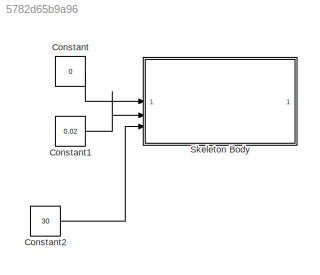
MODEL slx_5782d65b9a96
KIND model
CONFIG AbsTol = 1e-3
CONFIG EnableMultiTasking = off
CONFIG FixedStep = 0.01
CONFIG MaxStep = auto
CONFIG MinStep = auto
CONFIG RelTol = 1e-3
CONFIG SampleTimeConstraint = Unconstrained
CONFIG SolverName = VariableStepAuto
CONFIG StartTime = 0.0
CONFIG StopTime = 30
BLOCK [Constant] Constant
  Value = 0
BLOCK [Constant] Constant1
  Value = 0.02
BLOCK [Constant] Constant2
  Value = 30
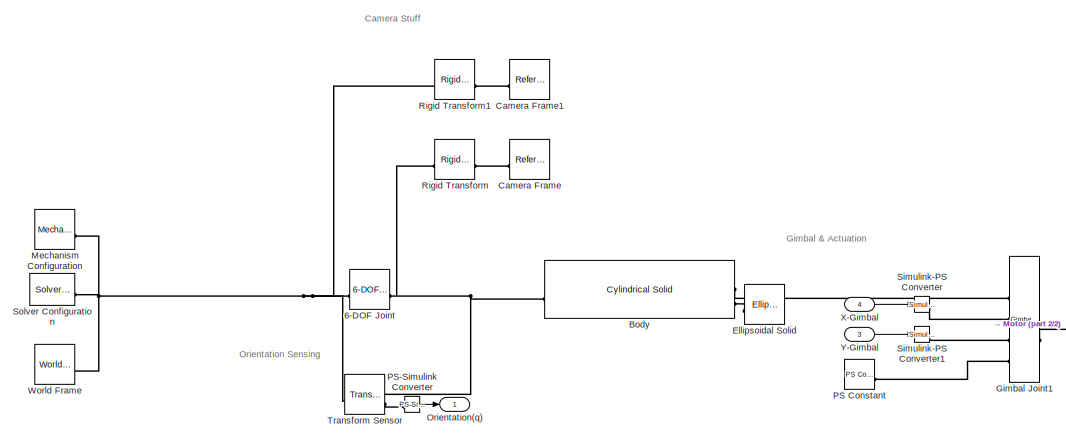
[diagram: Skeleton Body - part 1/2, left side, full height]
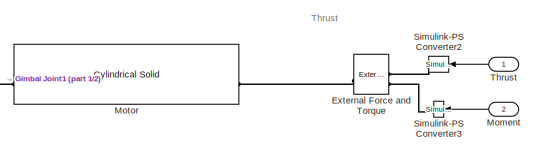
[diagram: Skeleton Body - part 2/2, bottom right region]
BLOCK [SubSystem] Skeleton Body
  NameLocation = top
BLOCK [Reference] Skeleton Body/6-DOF Joint  REF=sm_lib/Joints/6-DOF Joint
  SourceBlock = sm_lib/Joints/6-DOF Joint
  SourceType = 6-DOF Joint
BLOCK [Reference] Skeleton Body/Body  REF=sm_lib/Body Elements/Cylindrical Solid
  NameLocation = top
  SourceBlock = sm_lib/Body Elements/Cylindrical Solid
  SourceType = Cylindrical Solid
BLOCK [Reference] Skeleton Body/Camera Frame  REF=sm_lib/Frames and
Transforms/Reference
Frame
  NameLocation = top
  SourceBlock = sm_lib/Frames and\nTransforms/Reference\nFrame
  SourceType = Reference\nFrame
BLOCK [Reference] Skeleton Body/Camera Frame1  REF=sm_lib/Frames and
Transforms/Reference
Frame
  NameLocation = top
  SourceBlock = sm_lib/Frames and\nTransforms/Reference\nFrame
  SourceType = Reference\nFrame
BLOCK [Reference] Skeleton Body/Ellipsoidal Solid  REF=sm_lib/Body Elements/Ellipsoidal Solid
  NameLocation = top
  SourceBlock = sm_lib/Body Elements/Ellipsoidal Solid
  SourceType = Ellipsoidal Solid
BLOCK [Reference] Skeleton Body/External Force and Torque  REF=sm_lib/Forces and
Torques/External Force
and Torque
  NameLocation = top
  SourceBlock = sm_lib/Forces and\nTorques/External Force\nand Torque
  SourceType = External Force\nand Torque
BLOCK [Reference] Skeleton Body/Gimbal Joint1  REF=sm_lib/Joints/Gimbal Joint
  SourceBlock = sm_lib/Joints/Gimbal Joint
  SourceType = Gimbal Joint
BLOCK [Reference] Skeleton Body/Mechanism Configuration  REF=sm_lib/Utilities/Mechanism
Configuration
  SourceBlock = sm_lib/Utilities/Mechanism\nConfiguration
  SourceType = Mechanism\nConfiguration
BLOCK [Inport] Skeleton Body/Moment
  NameLocation = top
  Port = 2
BLOCK [Reference] Skeleton Body/Motor  REF=sm_lib/Body Elements/Cylindrical Solid
  SourceBlock = sm_lib/Body Elements/Cylindrical Solid
  SourceType = Cylindrical Solid
BLOCK [Outport] Skeleton Body/Orientation(q)
BLOCK [Reference] Skeleton Body/PS Constant  REF=fl_lib/Physical Signals/Sources/PS Constant
  SourceBlock = fl_lib/Physical Signals/Sources/PS Constant
  SourceType = PS Constant
BLOCK [Reference] Skeleton Body/PS-Simulink Converter  REF=nesl_utility/PS-Simulink
Converter
  SourceBlock = nesl_utility/PS-Simulink\nConverter
  SourceType = PS-Simulink\nConverter
BLOCK [Reference] Skeleton Body/Rigid Transform  REF=sm_lib/Frames and
Transforms/Rigid
Transform
  SourceBlock = sm_lib/Frames and\nTransforms/Rigid\nTransform
  SourceType = Rigid\nTransform
BLOCK [Reference] Skeleton Body/Rigid Transform1  REF=sm_lib/Frames and
Transforms/Rigid
Transform
  SourceBlock = sm_lib/Frames and\nTransforms/Rigid\nTransform
  SourceType = Rigid\nTransform
BLOCK [Reference] Skeleton Body/Simulink-PS Converter  REF=nesl_utility/Simulink-PS
Converter
  SourceBlock = nesl_utility/Simulink-PS\nConverter
  SourceType = Simulink-PS\nConverter
BLOCK [Reference] Skeleton Body/Simulink-PS Converter1  REF=nesl_utility/Simulink-PS
Converter
  SourceBlock = nesl_utility/Simulink-PS\nConverter
  SourceType = Simulink-PS\nConverter
BLOCK [Reference] Skeleton Body/Simulink-PS Converter2  REF=nesl_utility/Simulink-PS
Converter
  NameLocation = top
  SourceBlock = nesl_utility/Simulink-PS\nConverter
  SourceType = Simulink-PS\nConverter
BLOCK [Reference] Skeleton Body/Simulink-PS Converter3  REF=nesl_utility/Simulink-PS
Converter
  NameLocation = top
  SourceBlock = nesl_utility/Simulink-PS\nConverter
  SourceType = Simulink-PS\nConverter
BLOCK [Reference] Skeleton Body/Solver Configuration  REF=nesl_utility/Solver
Configuration
  SourceBlock = nesl_utility/Solver\nConfiguration
  SourceType = Solver\nConfiguration
BLOCK [Inport] Skeleton Body/Thrust
  NameLocation = top
BLOCK [Reference] Skeleton Body/Transform Sensor  REF=sm_lib/Frames and
Transforms/Transform
Sensor
  NameLocation = top
  SourceBlock = sm_lib/Frames and\nTransforms/Transform\nSensor
  SourceType = Transform\nSensor
BLOCK [Reference] Skeleton Body/World Frame  REF=sm_lib/Frames and
Transforms/World Frame
  SourceBlock = sm_lib/Frames and\nTransforms/World Frame
  SourceType = World Frame
BLOCK [Inport] Skeleton Body/X-Gimbal
  Port = 4
BLOCK [Inport] Skeleton Body/Y-Gimbal
  Port = 3
ANNOTATION Skeleton Body: Camera Stuff
ANNOTATION Skeleton Body: Gimbal & Actuation
ANNOTATION Skeleton Body: Orientation Sensing
ANNOTATION Skeleton Body: Thrust
LINE Constant1:1 -> Skeleton Body:2
LINE Constant2:1 -> Skeleton Body:4
LINE Constant:1 -> Skeleton Body:1
LINE Skeleton Body/Moment:1 -> Skeleton Body/Simulink-PS Converter3:1
LINE Skeleton Body/PS-Simulink Converter:1 -> Skeleton Body/Orientation(q):1
LINE Skeleton Body/Thrust:1 -> Skeleton Body/Simulink-PS Converter2:1
LINE Skeleton Body/X-Gimbal:1 -> Skeleton Body/Simulink-PS Converter:1
LINE Skeleton Body/Y-Gimbal:1 -> Skeleton Body/Simulink-PS Converter1:1
PNET net1: Skeleton Body/6-DOF Joint:LConn1 -- Skeleton Body/Mechanism Configuration:RConn1 -- Skeleton Body/Rigid Transform1:LConn1 -- Skeleton Body/Solver Configuration:RConn1 -- Skeleton Body/Transform Sensor:LConn1 -- Skeleton Body/World Frame:RConn1
PNET net2: Skeleton Body/6-DOF Joint:RConn1 -- Skeleton Body/Body:RConn1 -- Skeleton Body/Rigid Transform:LConn1 -- Skeleton Body/Transform Sensor:RConn1
PLINE Skeleton Body/Body:LConn1 -- Skeleton Body/Gimbal Joint1:LConn1
PLINE Skeleton Body/Body:LConn2 -- Skeleton Body/Ellipsoidal Solid:RConn1
PLINE Skeleton Body/Camera Frame1:RConn1 -- Skeleton Body/Rigid Transform1:RConn1
PLINE Skeleton Body/Camera Frame:RConn1 -- Skeleton Body/Rigid Transform:RConn1
PLINE Skeleton Body/External Force and Torque:LConn1 -- Skeleton Body/Simulink-PS Converter2:RConn1
PLINE Skeleton Body/External Force and Torque:LConn2 -- Skeleton Body/Simulink-PS Converter3:RConn1
PLINE Skeleton Body/External Force and Torque:RConn1 -- Skeleton Body/Motor:RConn1
PLINE Skeleton Body/Gimbal Joint1:LConn2 -- Skeleton Body/Simulink-PS Converter:RConn1
PLINE Skeleton Body/Gimbal Joint1:LConn3 -- Skeleton Body/Simulink-PS Converter1:RConn1
PLINE Skeleton Body/Gimbal Joint1:LConn4 -- Skeleton Body/PS Constant:RConn1
PLINE Skeleton Body/Gimbal Joint1:RConn1 -- Skeleton Body/Motor:LConn1
PLINE Skeleton Body/PS-Simulink Converter:LConn1 -- Skeleton Body/Transform Sensor:RConn2
note: PNET lines group multi-terminal physical nets as a canonical sorted terminal list (undirected conserving connections); 2-terminal nets keep the pairwise PLINE form
